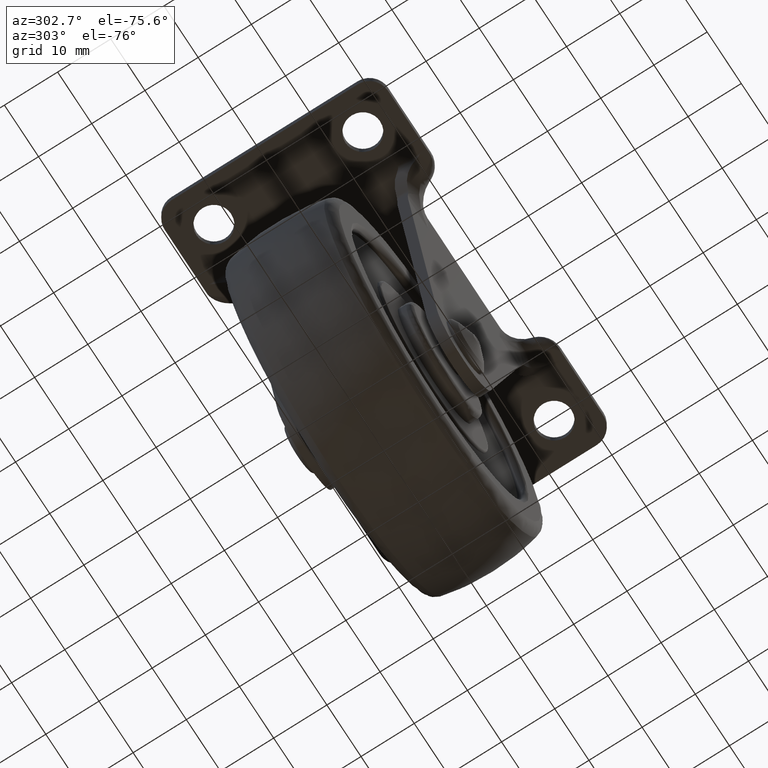
[diagram: clean part render]
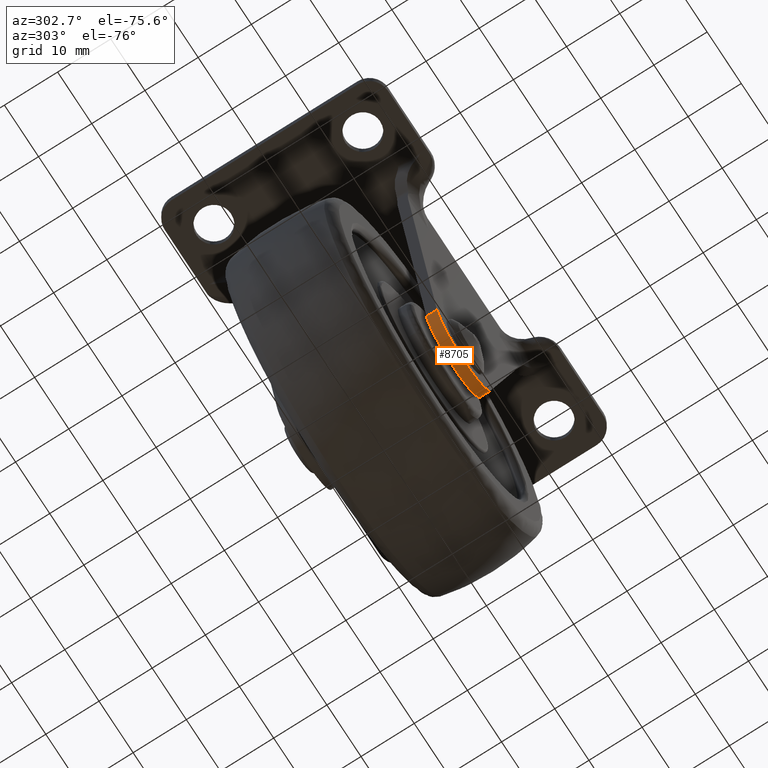
[diagram: same view with one face highlighted and labeled with its STEP entity id]
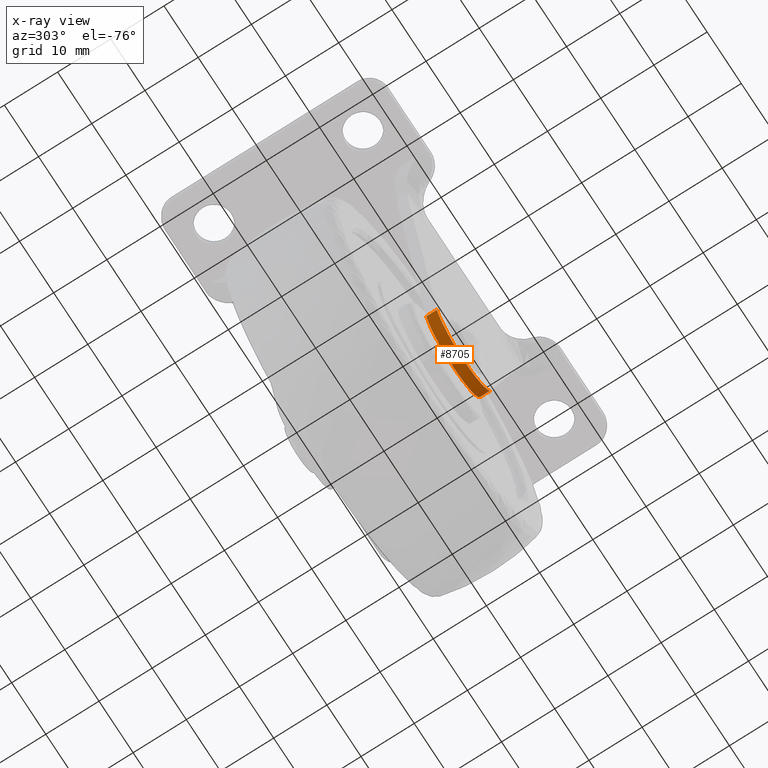
[diagram: x-ray of the same camera — body ghosted, the highlighted face saturated]
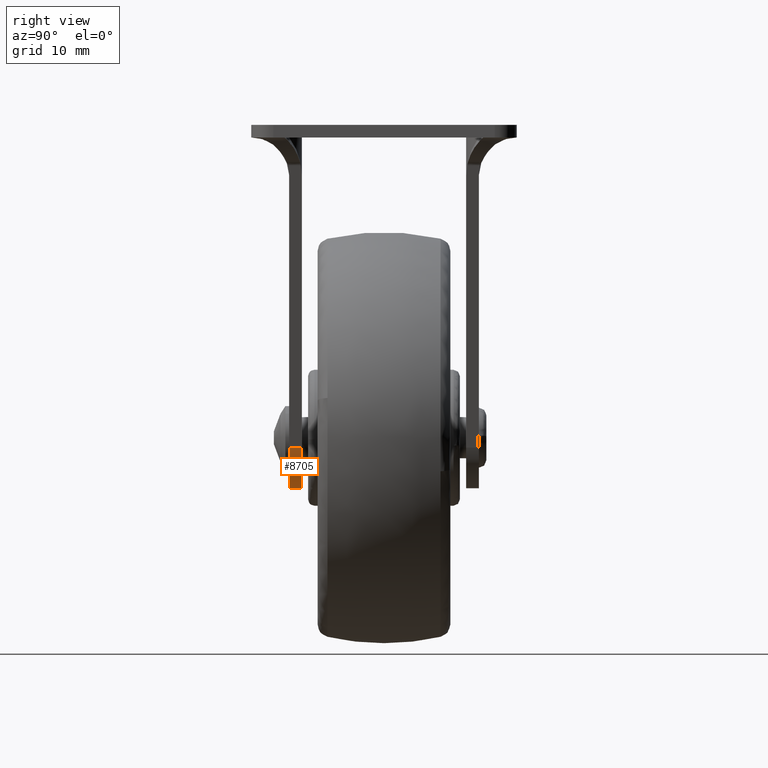
[diagram: same view with one face highlighted and labeled with its STEP entity id]
A machine part, auxiliary view. The second image highlights one B-rep face of the part: STEP entity #8705.
The next image is the same camera in x-ray: the body ghosted, the highlighted face saturated — about 0% of this face is hidden behind the body in this view.
A second angle (right view) of the same face is appended — the face is thin or edge-on in the first view.
In plain terms, the highlighted face is a freeform B-spline surface patch.
Its self-contained STEP definition (entity closure, byte-faithful):
#6994=CARTESIAN_POINT('',(-7.848986975766269,-13.0,3.452937152455845));
#6995=VERTEX_POINT('',#6994);
#7020=CARTESIAN_POINT('',(7.846932247935651,-13.0,3.442548782045605));
#7021=VERTEX_POINT('',#7020);
#7027=CARTESIAN_POINT('',(7.846932247935651,-13.0,3.442548782045605));
#7028=CARTESIAN_POINT('',(7.768846354976973,-13.0,3.049032196680977));
#7029=CARTESIAN_POINT('',(7.545603227700584,-13.000000000000020,2.246101097641451));
#7030=CARTESIAN_POINT('',(6.997978775907779,-13.0,1.042314024504522));
#7031=CARTESIAN_POINT('',(6.235495566178594,-12.999999999999959,-0.074772995234637));
#7032=CARTESIAN_POINT('',(5.293986912485002,-13.000000000000011,-1.044051731800759));
#7033=CARTESIAN_POINT('',(4.209128699380675,-13.0,-1.849655766345787));
#7034=CARTESIAN_POINT('',(2.872856276676656,-12.999999999999970,-2.523163188476290));
#7035=CARTESIAN_POINT('',(1.399791252501536,-13.000000000000041,-2.927629294479673));
#7036=CARTESIAN_POINT('',(0.109077808756399,-12.999999999999890,-3.023972795147531));
#7037=CARTESIAN_POINT('',(-1.122384833725214,-13.000000000000060,-2.950312685920894));
#7038=CARTESIAN_POINT('',(-2.334526697368316,-13.0,-2.698519192310627));
#7039=CARTESIAN_POINT('',(-3.586133302119440,-12.999999999999980,-2.187597259739210));
#7040=CARTESIAN_POINT('',(-4.717276617860445,-13.000000000000011,-1.504408634287096));
#7041=CARTESIAN_POINT('',(-5.703920369192727,-13.0,-0.665703054719901));
#7042=CARTESIAN_POINT('',(-6.586909958070623,-13.000000000000011,0.394839958803544));
#7043=CARTESIAN_POINT('',(-7.369095217708410,-13.0,1.736708149504907));
#7044=CARTESIAN_POINT('',(-7.721702692302291,-12.999999999999989,2.806221034544544));
#7045=CARTESIAN_POINT('',(-7.848986975766269,-13.0,3.452937152455845));
#7046=B_SPLINE_CURVE_WITH_KNOTS('',3,(#7027,#7028,#7029,#7030,#7031,#7032,#7033,#7034,#7035,#7036,#7037,#7038,#7039,#7040,#7041,#7042,#7043,#7044,#7045),.UNSPECIFIED.,.F.,.U.,(4,1,1,1,1,1,1,1,1,1,1,1,1,1,1,1,4),(0.000000140502657,1.203572246636909,2.493115458923167,3.954637227073352,5.244217341401651,6.533792217094401,7.995313090529640,9.714744176677669,11.090198803892971,11.863920869459040,13.411404396505221,14.786965886630860,15.904588404121300,17.366099998771009,18.655681476536781,20.031192261972048,22.008514714943551),.UNSPECIFIED.);
#7047=EDGE_CURVE('',#7021,#6995,#7046,.T.);
#7843=CARTESIAN_POINT('',(-7.848986975766269,-15.0,3.452937152455845));
#7844=VERTEX_POINT('',#7843);
#7850=CARTESIAN_POINT('',(7.846932247935651,-15.0,3.442548782045605));
#7851=VERTEX_POINT('',#7850);
#7852=CARTESIAN_POINT('',(7.846932247935651,-15.0,3.442548782045605));
#7853=CARTESIAN_POINT('',(7.768845972471106,-14.999999999999989,3.049032101763911));
#7854=CARTESIAN_POINT('',(7.545608646829821,-15.000000000000011,2.246098687654200));
#7855=CARTESIAN_POINT('',(7.045570634606764,-15.000000000000050,1.147012493240343));
#7856=CARTESIAN_POINT('',(6.308586297208578,-14.999999999999940,0.015716436268973));
#7857=CARTESIAN_POINT('',(5.386357044904789,-15.000000000000030,-0.975527176167206));
#7858=CARTESIAN_POINT('',(4.301441976876437,-14.999999999999989,-1.781074994687802));
#7859=CARTESIAN_POINT('',(3.185184615297242,-15.000000000000069,-2.374050308843386));
#7860=CARTESIAN_POINT('',(2.070484275552084,-14.999999999999851,-2.758944466024452));
#7861=CARTESIAN_POINT('',(0.799592500076295,-14.999999999999970,-2.992862885936946));
#7862=CARTESIAN_POINT('',(-0.408576347844832,-15.000000000000229,-3.024537299347995));
#7863=CARTESIAN_POINT('',(-1.717972253307370,-14.999999999999689,-2.846673009712885));
#7864=CARTESIAN_POINT('',(-3.123336620053626,-15.000000000000240,-2.426182806015131));
#7865=CARTESIAN_POINT('',(-4.621621733746248,-14.999999999999879,-1.617478083670435));
#7866=CARTESIAN_POINT('',(-5.980281222387546,-15.000000000000041,-0.411111196945795));
#7867=CARTESIAN_POINT('',(-6.991396334457362,-15.0,0.991889919965305));
#7868=CARTESIAN_POINT('',(-7.571921511470585,-14.999999999999989,2.310031079821203));
#7869=CARTESIAN_POINT('',(-7.788027852134151,-15.0,3.143678257072394));
#7870=CARTESIAN_POINT('',(-7.848986975766269,-15.0,3.452937152455845));
#7871=B_SPLINE_CURVE_WITH_KNOTS('',3,(#7852,#7853,#7854,#7855,#7856,#7857,#7858,#7859,#7860,#7861,#7862,#7863,#7864,#7865,#7866,#7867,#7868,#7869,#7870),.UNSPECIFIED.,.F.,.U.,(4,1,1,1,1,1,1,1,1,1,1,1,1,1,1,1,4),(0.000000140502657,1.203572246636909,2.493115458923167,3.610749901962215,5.244217341401651,6.533792217094401,7.651425053307085,9.026935622510196,10.058619526478081,11.520077620391850,12.637657408212529,14.013226375427969,15.904588404121300,17.709982551795932,19.429427196937180,21.062876038247708,22.008514714943551),.UNSPECIFIED.);
#7872=EDGE_CURVE('',#7851,#7844,#7871,.T.);
#8584=CARTESIAN_POINT('',(-7.848986975766269,-13.0,3.452937152455845));
#8585=CARTESIAN_POINT('',(-7.848986975766269,-15.0,3.452937152455845));
#8586=QUASI_UNIFORM_CURVE('',1,(#8584,#8585),.UNSPECIFIED.,.F.,.U.);
#8587=EDGE_CURVE('',#6995,#7844,#8586,.T.);
#8616=CARTESIAN_POINT('',(7.846932247935651,-13.0,3.442548782045605));
#8617=CARTESIAN_POINT('',(7.846932247935651,-15.0,3.442548782045605));
#8618=QUASI_UNIFORM_CURVE('',1,(#8616,#8617),.UNSPECIFIED.,.F.,.U.);
#8619=EDGE_CURVE('',#7021,#7851,#8618,.T.);
#8681=CARTESIAN_POINT('',(7.893720642455405,-12.949999999999990,3.700317569991273));
#8682=CARTESIAN_POINT('',(7.893720642455405,-15.051250000000000,3.700317569991273));
#8683=CARTESIAN_POINT('',(6.763923942676054,-12.949999999999992,-3.161589096521396));
#8684=CARTESIAN_POINT('',(6.763923942676054,-15.051250000000005,-3.161589096521396));
#8685=CARTESIAN_POINT('',(-0.188440430019092,-12.949999999999990,-2.997780329837411));
#8686=CARTESIAN_POINT('',(-0.188440430019092,-15.051250000000000,-2.997780329837411));
#8687=CARTESIAN_POINT('',(-7.140804802714240,-12.949999999999992,-2.833971563153428));
#8688=CARTESIAN_POINT('',(-7.140804802714240,-15.051250000000005,-2.833971563153428));
#8689=CARTESIAN_POINT('',(-7.946172320439418,-12.949999999999990,4.073530651406948));
#8690=CARTESIAN_POINT('',(-7.946172320439418,-15.051250000000000,4.073530651406948));
#8698=(BOUNDED_SURFACE()B_SPLINE_SURFACE(1,2,((#8681,#8683,#8685,#8687,#8689),(#8682,#8684,#8686,#8688,#8690)),.UNSPECIFIED.,.F.,.F.,.U.)B_SPLINE_SURFACE_WITH_KNOTS((2,2),(3,2,3),(0.0,2.101250000000007),(0.0,11.964309743513750,23.928619487027500),.UNSPECIFIED.)GEOMETRIC_REPRESENTATION_ITEM()RATIONAL_B_SPLINE_SURFACE(((1.0,0.754709580222772,1.0,0.754709580222772,1.0),(1.0,0.754709580222772,1.0,0.754709580222772,1.0)))REPRESENTATION_ITEM('')SURFACE());
#8699=ORIENTED_EDGE('',*,*,#8587,.F.);
#8700=ORIENTED_EDGE('',*,*,#7047,.F.);
#8701=ORIENTED_EDGE('',*,*,#8619,.T.);
#8702=ORIENTED_EDGE('',*,*,#7872,.T.);
#8703=EDGE_LOOP('',(#8699,#8700,#8701,#8702));
#8704=FACE_OUTER_BOUND('',#8703,.T.);
#8705=ADVANCED_FACE('',(#8704),#8698,.T.);